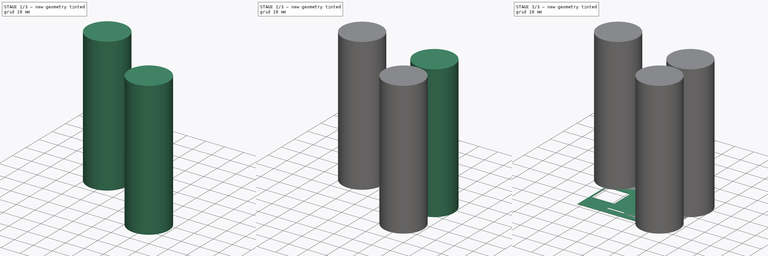
[diagram: build sequence overview — one tinted view per stage of 3, left to right]
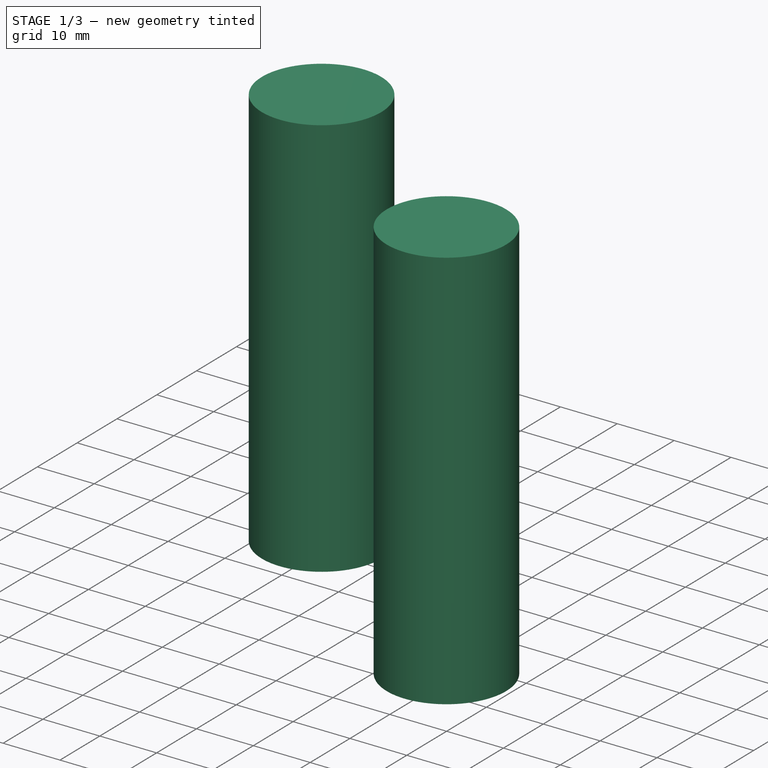
[diagram: stage 1 of 3 — iso view after this stage's code; geometry added in this stage tinted green]
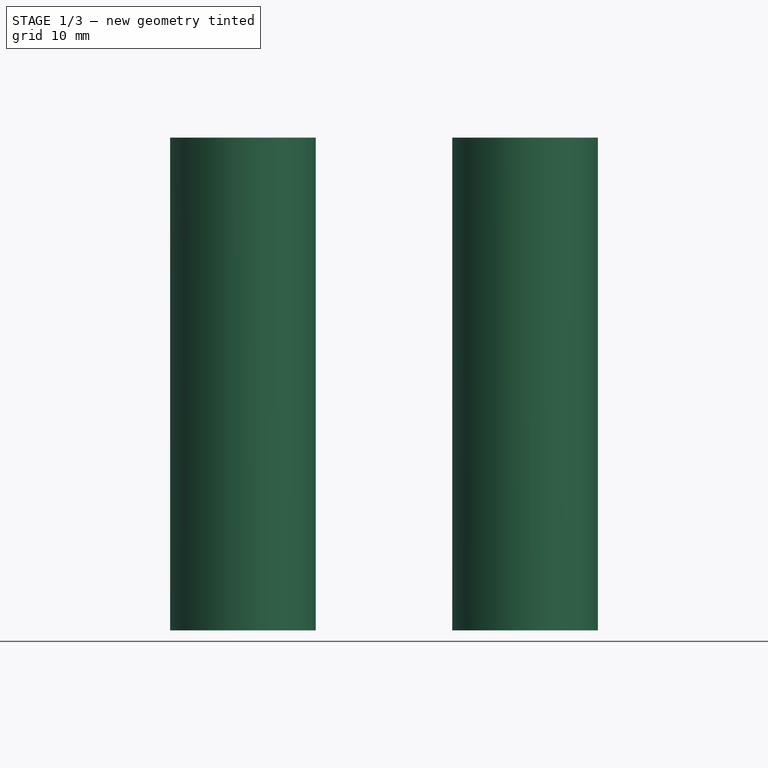
[diagram: stage 1 of 3 — front view after this stage's code; geometry added in this stage tinted green]
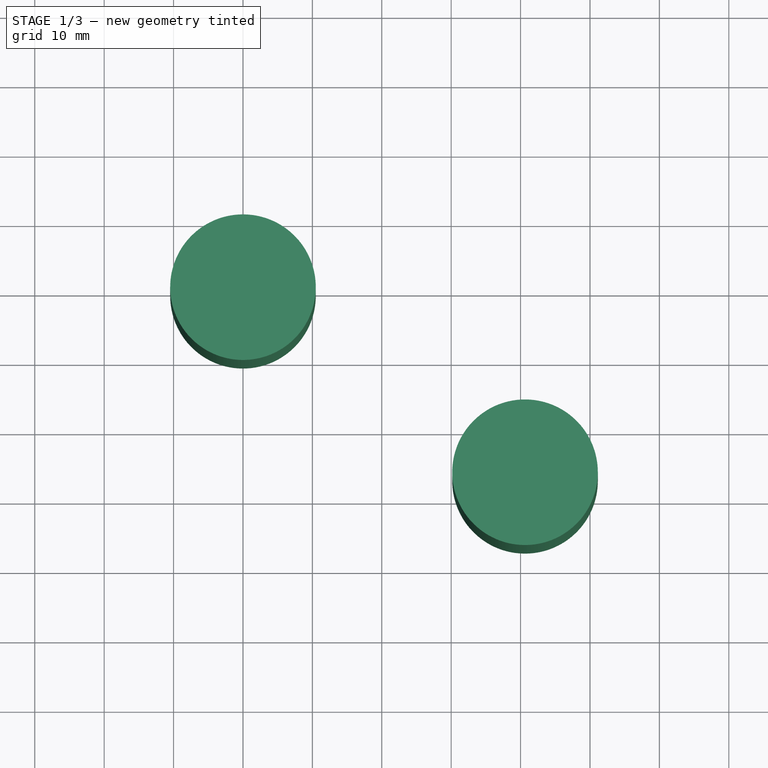
[diagram: stage 1 of 3 — top view after this stage's code; geometry added in this stage tinted green]
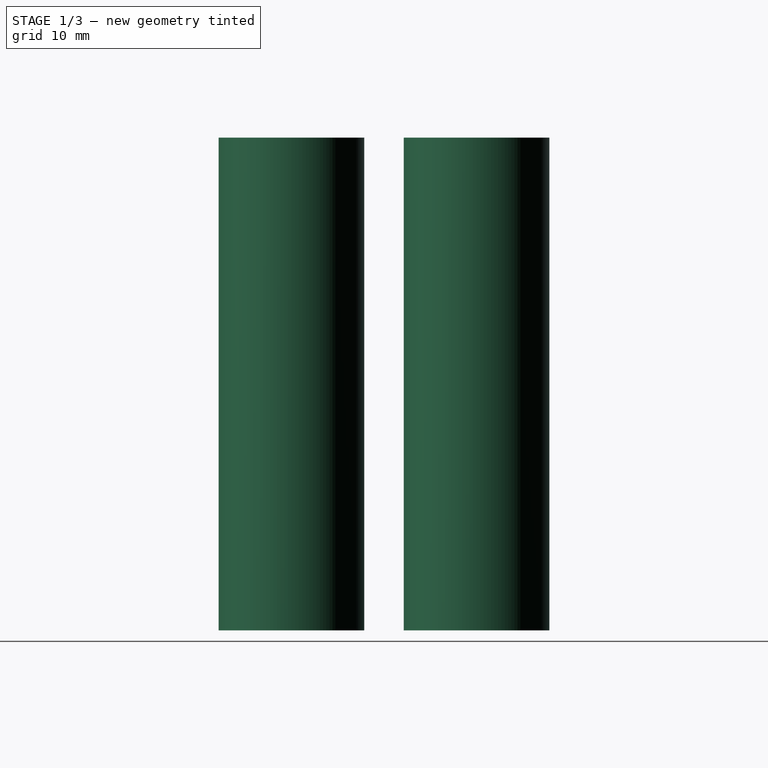
[diagram: stage 1 of 3 — right view after this stage's code; geometry added in this stage tinted green]
FCSTD DOCUMENT  (FreeCAD 0.21R33771 (Git))
Label: bb
License: All rights reserved
LicenseURL: http://en.wikipedia.org/wiki/All_rights_reserved
objects: Part::Cylinder×4, Sketcher::SketchObject×1, PartDesign::Pad×1, PartDesign::Body×1
note: 8 computed .brp shape members not serialized (recipe doc carries the construction recipe); baked Part::Feature solids carry a one-line shape summary decoded from their .brp

FEATURE [Part::Cylinder] Cylinder002
  Angle = 360
  AttacherType = Attacher::AttachEngine3D
  FirstAngle = 0
  Height = 70.993
  Placement = pos=(40.64,-26.67,0) rot=(0,0,1;0rad)
  Radius = 10.4902
  SecondAngle = 0
FEATURE [Part::Cylinder] Cylinder003
  Angle = 360
  AttacherType = Attacher::AttachEngine3D
  FirstAngle = 0
  Height = 70.993
  Radius = 10.4902
  SecondAngle = 0
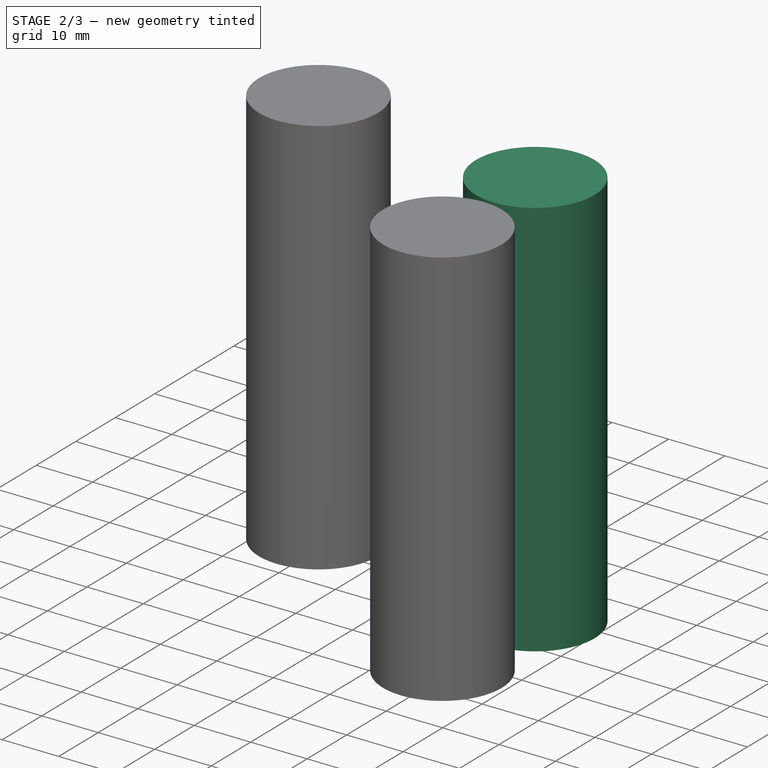
[diagram: stage 2 of 3 — iso view after this stage's code; geometry added in this stage tinted green]
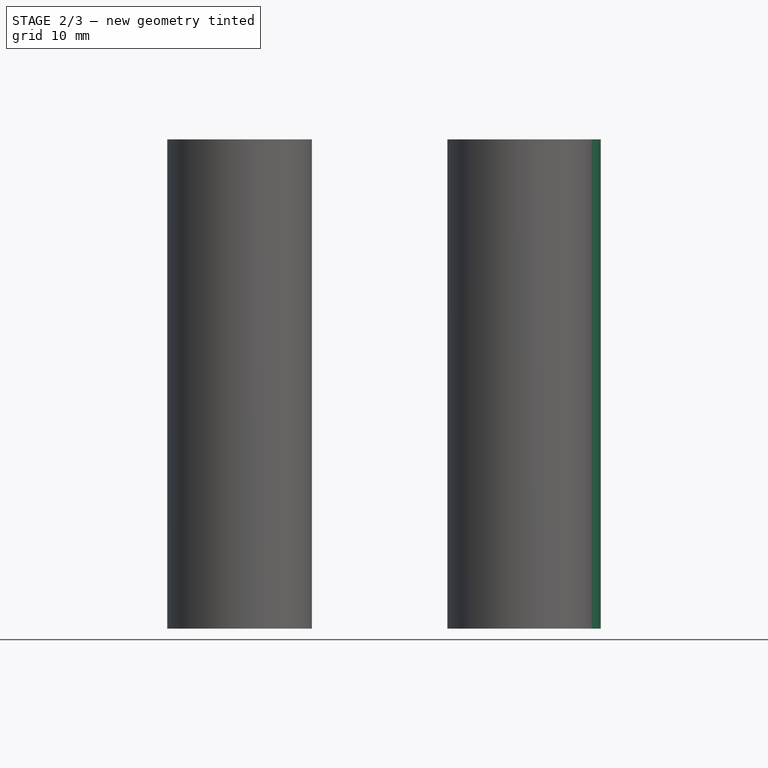
[diagram: stage 2 of 3 — front view after this stage's code; geometry added in this stage tinted green]
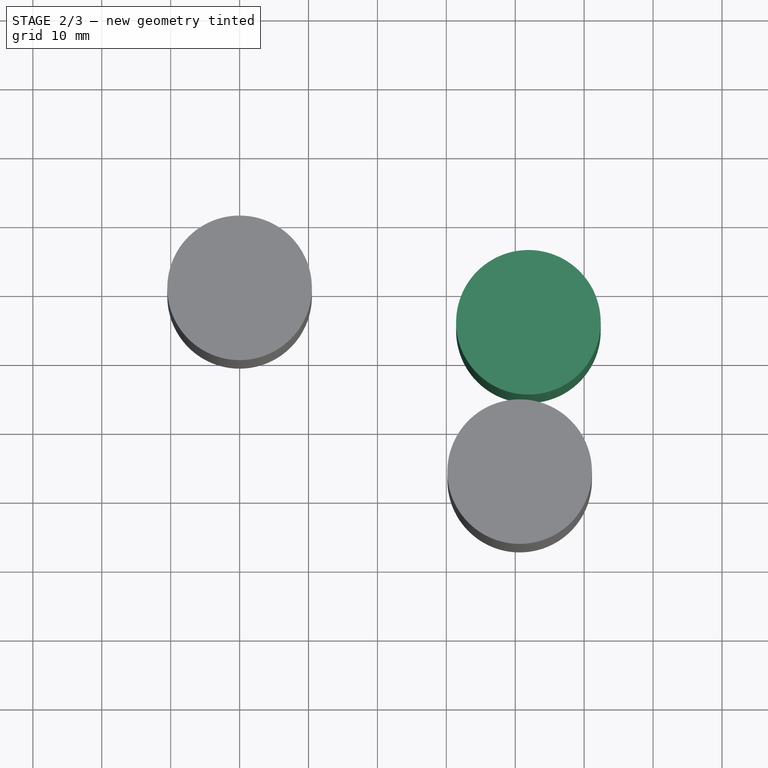
[diagram: stage 2 of 3 — top view after this stage's code; geometry added in this stage tinted green]
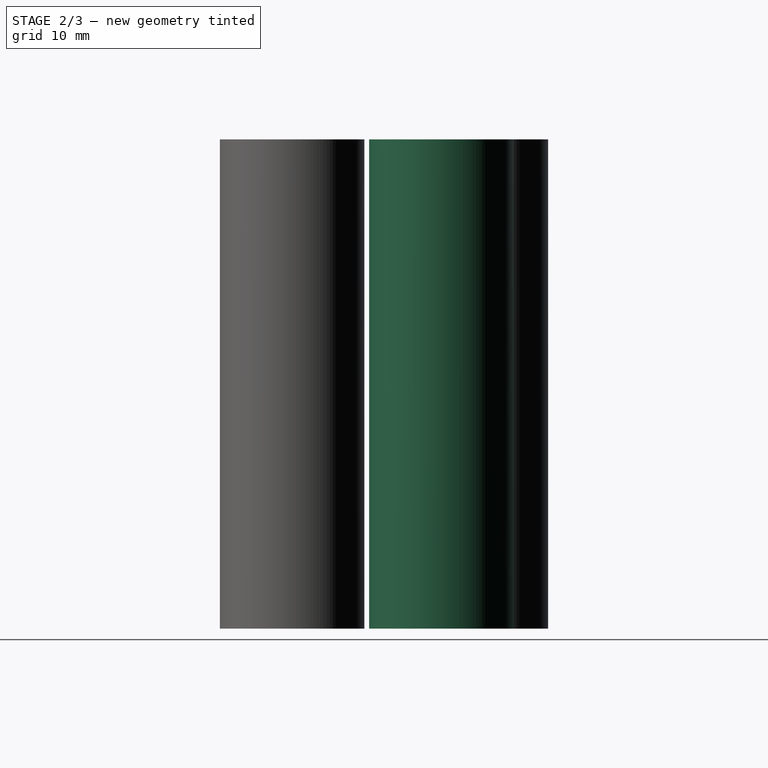
[diagram: stage 2 of 3 — right view after this stage's code; geometry added in this stage tinted green]
FEATURE [PartDesign::Body] Body
  Group = -> [Sketch,Pad]
  Origin = -> Origin
  Tip = -> Pad
FEATURE [Part::Cylinder] Cylinder001
  Angle = 360
  AttacherType = Attacher::AttachEngine3D
  FirstAngle = 0
  Height = 70.993
  Placement = pos=(41.91,-5,0) rot=(0,0,1;0rad)
  Radius = 10.4902
  SecondAngle = 0
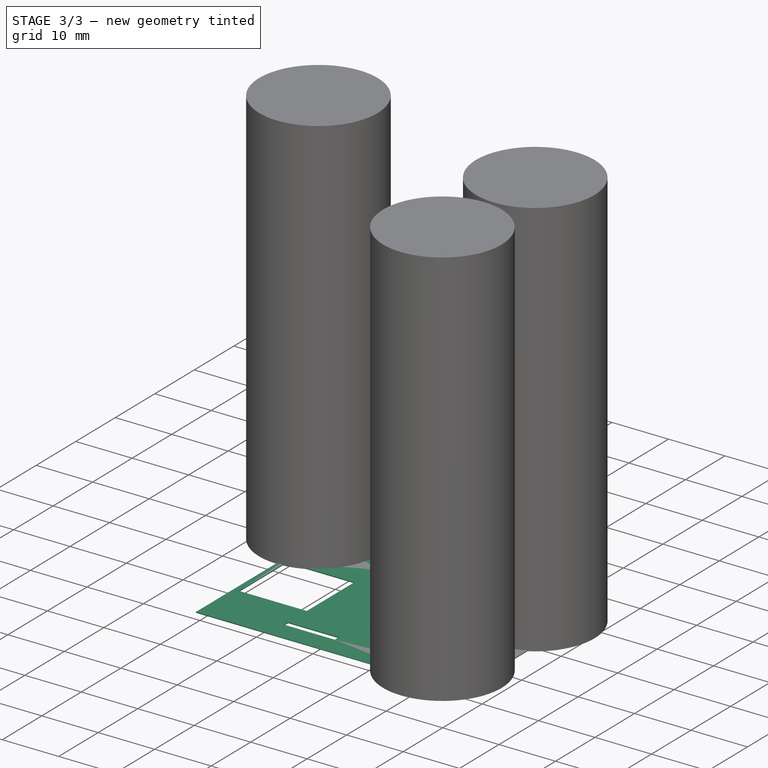
[diagram: stage 3 of 3 — iso view after this stage's code; geometry added in this stage tinted green]
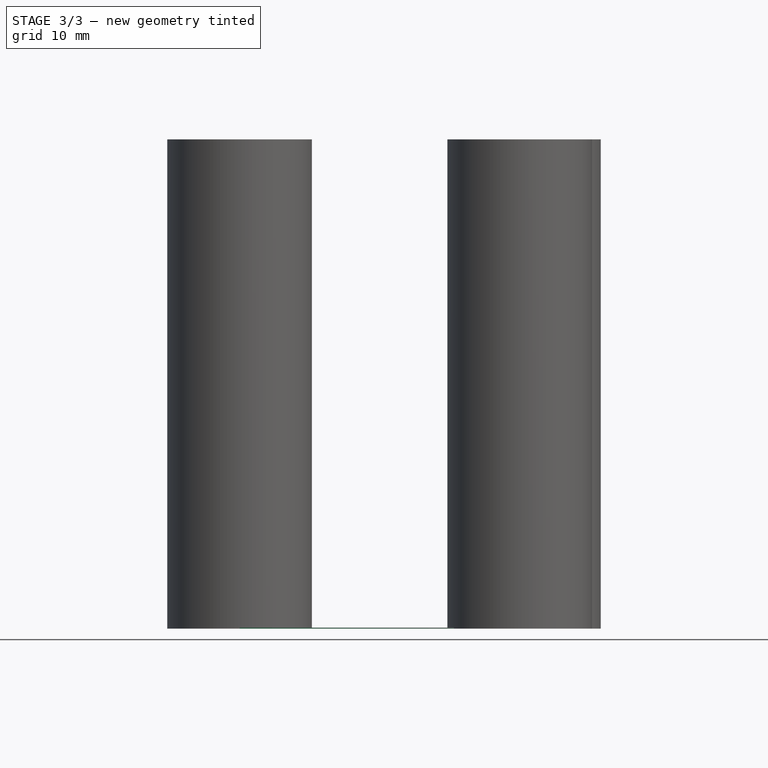
[diagram: stage 3 of 3 — front view after this stage's code; geometry added in this stage tinted green]
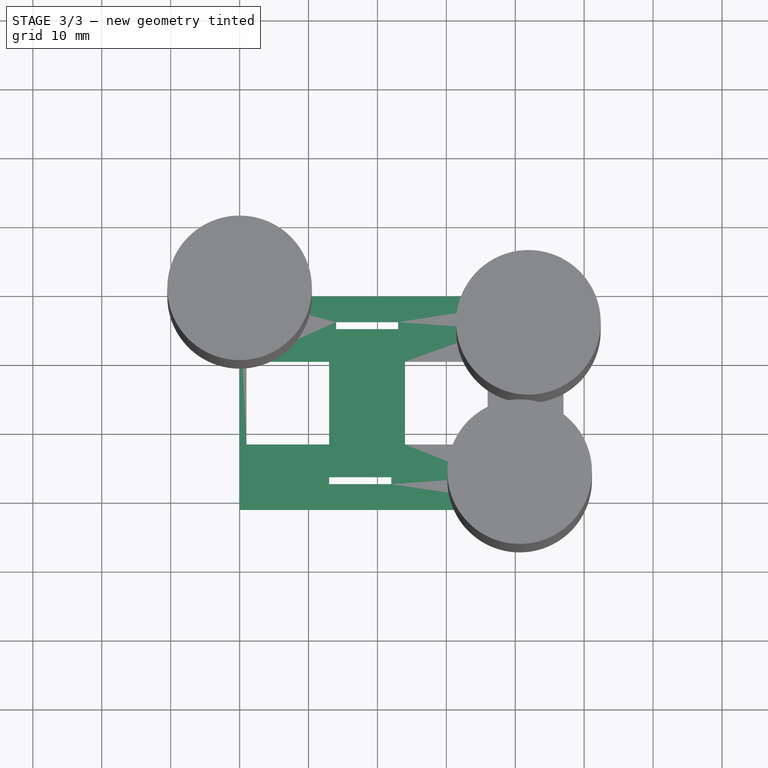
[diagram: stage 3 of 3 — top view after this stage's code; geometry added in this stage tinted green]
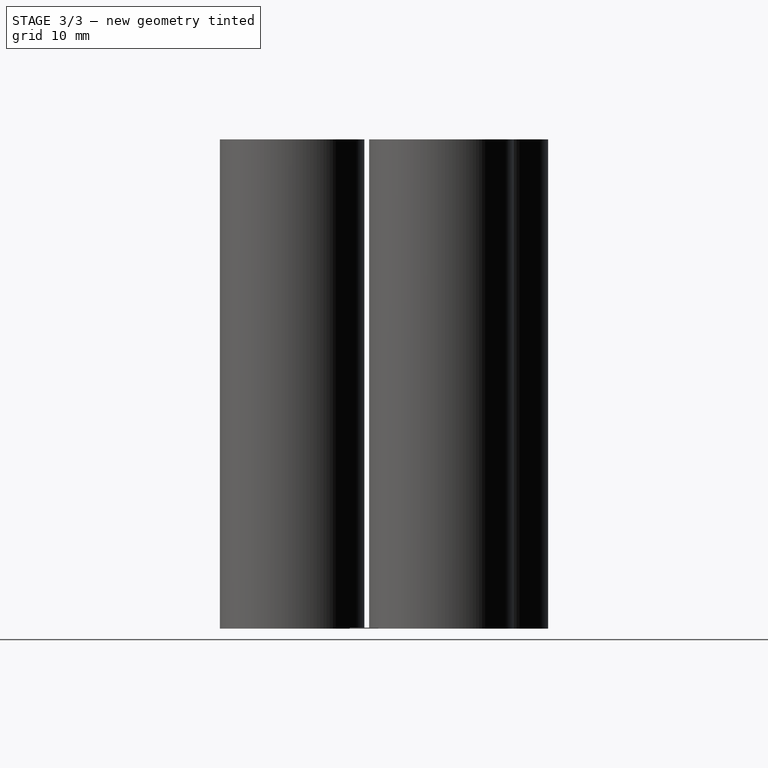
[diagram: stage 3 of 3 — right view after this stage's code; geometry added in this stage tinted green]
FEATURE [Part::Cylinder] Cylinder
  Angle = 360
  AttacherType = Attacher::AttachEngine3D
  FirstAngle = 0
  Height = 70.993
  Radius = 10.4902
  SecondAngle = 0
FEATURE [Sketcher::SketchObject] Sketch
  FullyConstrained = true
  MapMode = 5
  Support = -> [XY_Plane]
  sketch-geometry (28):
    g0: LineSegment StartX=0 StartY=0 StartZ=0 EndX=47 EndY=0 EndZ=0
    g1: LineSegment StartX=47 StartY=0 StartZ=0 EndX=47 EndY=-31 EndZ=0
    g2: LineSegment StartX=47 StartY=-31 StartZ=0 EndX=0 EndY=-31 EndZ=0
    g3: LineSegment StartX=0 StartY=-31 StartZ=0 EndX=0 EndY=0 EndZ=0
    g4: LineSegment StartX=1 StartY=-9.5 StartZ=0 EndX=13 EndY=-9.5 EndZ=0
    g5: LineSegment StartX=13 StartY=-9.5 StartZ=0 EndX=13 EndY=-21.5 EndZ=0
    g6: LineSegment StartX=13 StartY=-21.5 StartZ=0 EndX=1 EndY=-21.5 EndZ=0
    g7: LineSegment StartX=1 StartY=-21.5 StartZ=0 EndX=1 EndY=-9.5 EndZ=0
    g8: LineSegment StartX=14 StartY=-4.75 StartZ=0 EndX=23 EndY=-4.75 EndZ=0
    g9: LineSegment StartX=23 StartY=-4.75 StartZ=0 EndX=23 EndY=-3.75 EndZ=0
    g10: LineSegment StartX=23 StartY=-3.75 StartZ=0 EndX=14 EndY=-3.75 EndZ=0
    g11: LineSegment StartX=14 StartY=-3.75 StartZ=0 EndX=14 EndY=-4.75 EndZ=0
    g12: LineSegment StartX=13 StartY=-26.25 StartZ=0 EndX=22 EndY=-26.25 EndZ=0
    g13: LineSegment StartX=22 StartY=-26.25 StartZ=0 EndX=22 EndY=-27.25 EndZ=0
    g14: LineSegment StartX=22 StartY=-27.25 StartZ=0 EndX=13 EndY=-27.25 EndZ=0
    g15: LineSegment StartX=13 StartY=-27.25 StartZ=0 EndX=13 EndY=-26.25 EndZ=0
    g16: LineSegment StartX=24 StartY=-9.5 StartZ=0 EndX=36 EndY=-9.5 EndZ=0
    g17: LineSegment StartX=36 StartY=-9.5 StartZ=0 EndX=36 EndY=-21.5 EndZ=0
    g18: LineSegment StartX=36 StartY=-21.5 StartZ=0 EndX=24 EndY=-21.5 EndZ=0
    g19: LineSegment StartX=24 StartY=-21.5 StartZ=0 EndX=24 EndY=-9.5 EndZ=0
    g20: LineSegment StartX=37 StartY=-4.75 StartZ=0 EndX=46 EndY=-4.75 EndZ=0
    g21: LineSegment StartX=46 StartY=-4.75 StartZ=0 EndX=46 EndY=-3.75 EndZ=0
    g22: LineSegment StartX=46 StartY=-3.75 StartZ=0 EndX=37 EndY=-3.75 EndZ=0
    g23: LineSegment StartX=37 StartY=-3.75 StartZ=0 EndX=37 EndY=-4.75 EndZ=0
    g24: LineSegment StartX=36 StartY=-26.25 StartZ=0 EndX=45 EndY=-26.25 EndZ=0
    g25: LineSegment StartX=45 StartY=-26.25 StartZ=0 EndX=45 EndY=-27.25 EndZ=0
    g26: LineSegment StartX=45 StartY=-27.25 StartZ=0 EndX=36 EndY=-27.25 EndZ=0
    g27: LineSegment StartX=36 StartY=-27.25 StartZ=0 EndX=36 EndY=-26.25 EndZ=0
  constraints (83):
    c: Coincident(g0,g1)
    c: Coincident(g1,g2)
    c: Coincident(g2,g3)
    c: Coincident(g3,g0)
    c: Horizontal(g0)
    c: Horizontal(g2)
    c: Vertical(g1)
    c: Vertical(g3)
    c: DistanceY(g2,g0) = 31
    c: Coincident(g4,g5)
    c: Coincident(g5,g6)
    c: Coincident(g6,g7)
    c: Coincident(g7,g4)
    c: Horizontal(g4)
    c: Horizontal(g6)
    c: Vertical(g5)
    c: Vertical(g7)
    c: DistanceY(g5,g4) = 12
    c: DistanceX(g4,g4) = 12
    c: DistanceY(g4,g0) = 9.5
    c: Coincident(g8,g9)
    c: Coincident(g9,g10)
    c: Coincident(g10,g11)
    c: Coincident(g11,g8)
    c: Horizontal(g8)
    c: Horizontal(g10)
    c: Vertical(g9)
    c: Vertical(g11)
    c: Coincident(g12,g13)
    c: Coincident(g13,g14)
    c: Coincident(g14,g15)
    c: Coincident(g15,g12)
    c: Horizontal(g12)
    c: Horizontal(g14)
    c: Vertical(g13)
    c: Vertical(g15)
    c: DistanceY(g12,g8) = 21.5
    c: DistanceX(g5,g12) = 0
    c: DistanceY(g8,g9) = 1
    c: Coincident(g16,g17)
    c: Coincident(g17,g18)
    c: Coincident(g18,g19)
    c: Coincident(g19,g16)
    c: Horizontal(g16)
    c: Horizontal(g18)
    c: Vertical(g17)
    c: Vertical(g19)
    c: Coincident(g20,g21)
    c: Coincident(g21,g22)
    c: Coincident(g22,g23)
    c: Coincident(g23,g20)
    c: Horizontal(g20)
    c: Horizontal(g22)
    c: Vertical(g21)
    c: Vertical(g23)
    c: Coincident(g24,g25)
    c: Coincident(g25,g26)
    c: Coincident(g26,g27)
    c: Coincident(g27,g24)
    c: Horizontal(g24)
    c: Horizontal(g26)
    c: Vertical(g25)
    c: Vertical(g27)
    c: DistanceY(g12,g24) = 0
    c: DistanceY(g13,g26) = 0
    c: DistanceY(g20,g8) = 0
    c: DistanceY(g9,g22) = 0
    c: DistanceX(g10,g22) = 23
    c: DistanceX(g16,g16) = 12
    c: DistanceY(g18,g16) = 12
    c: DistanceY(g16,g4) = 0
    c: DistanceX(g10,g9) = 9
    c: DistanceX(g22,g21) = 9
    c: DistanceX(g12,g12) = 9
    c: DistanceX(g24,g24) = 9
    c: DistanceX(g4,g8) = 1
    c: DistanceX(g8,g16) = 1
    c: DistanceY(g13,g12) = 1
    c: DistanceY(g9,g0) = 3.75
    c: DistanceX(g0,g4) = 1
    c: DistanceX(g20,g0) = 1
    c: DistanceX(g14,g26) = 23
    c: Coincident(g-1,g0)
FEATURE [PartDesign::Pad] Pad
  Direction = (0,0,1)
  Length = 0.15
  Length2 = 10
  Profile = -> Sketch
  ReferenceAxis = -> Sketch [N_Axis]
  Type = 0
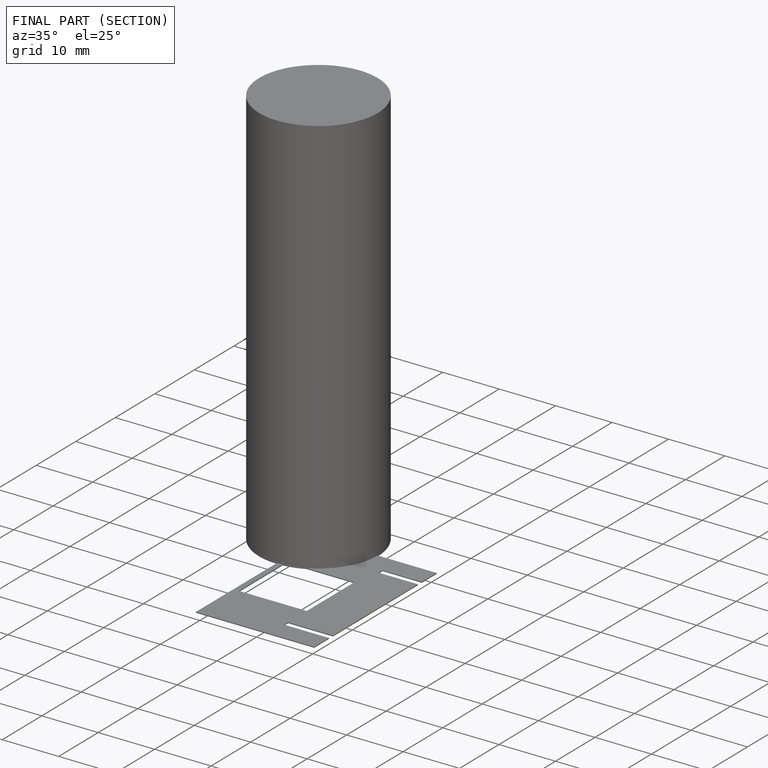
[diagram: finished part — half-section view (interior)]
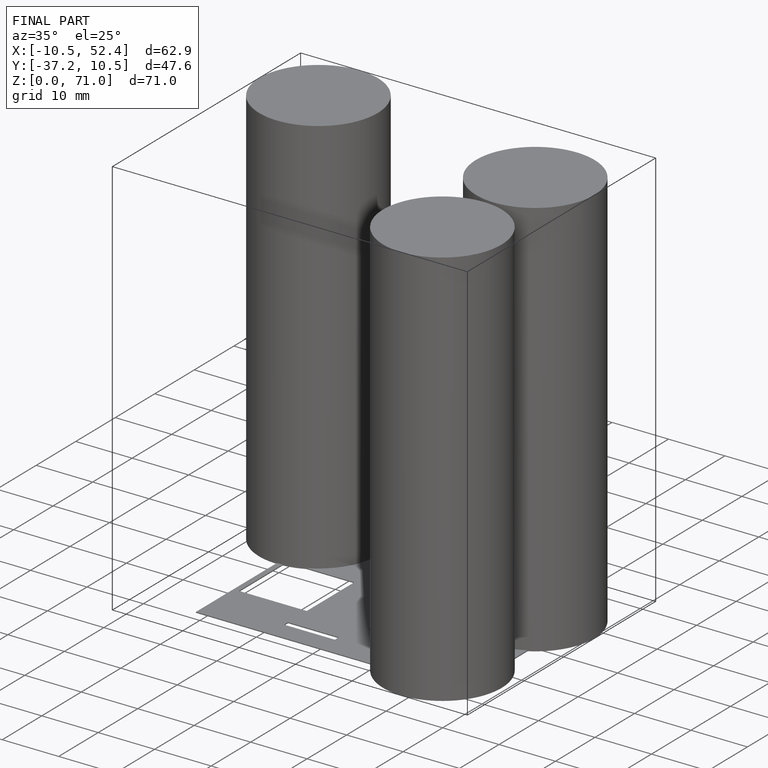
[diagram: finished part — iso view with bounding-box wireframe]
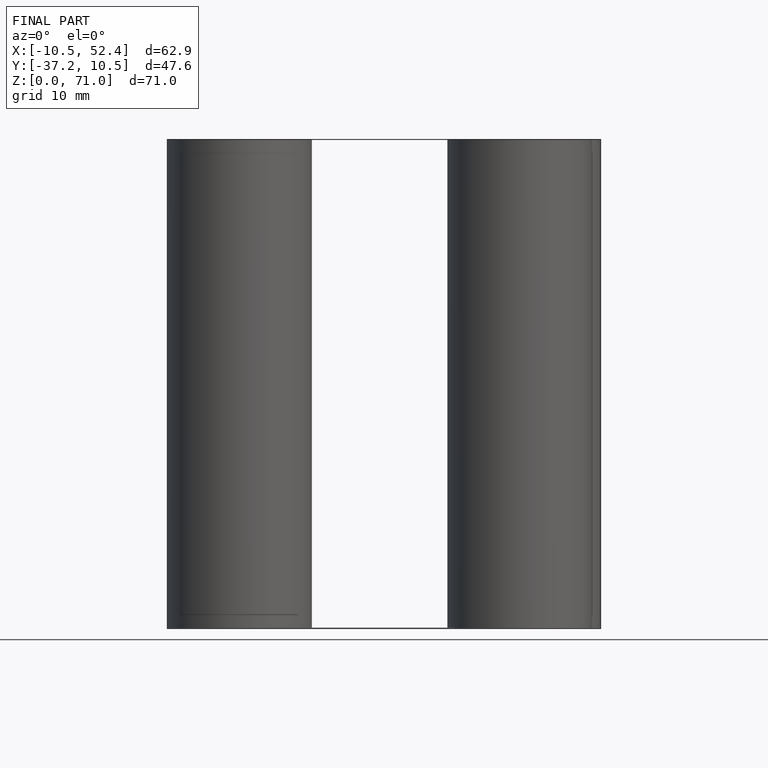
[diagram: finished part — front view with bounding-box wireframe]
